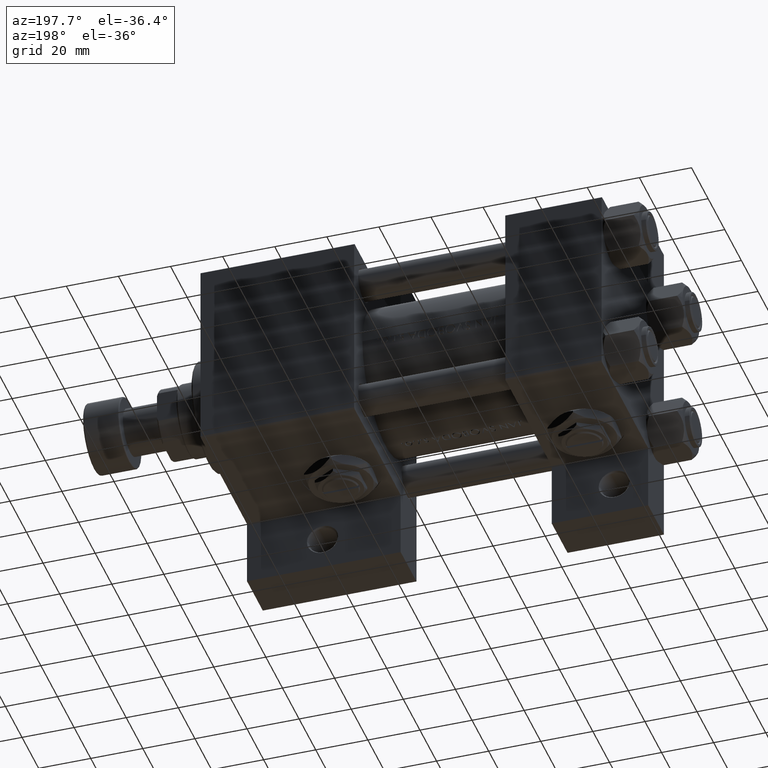
[diagram: clean part render]
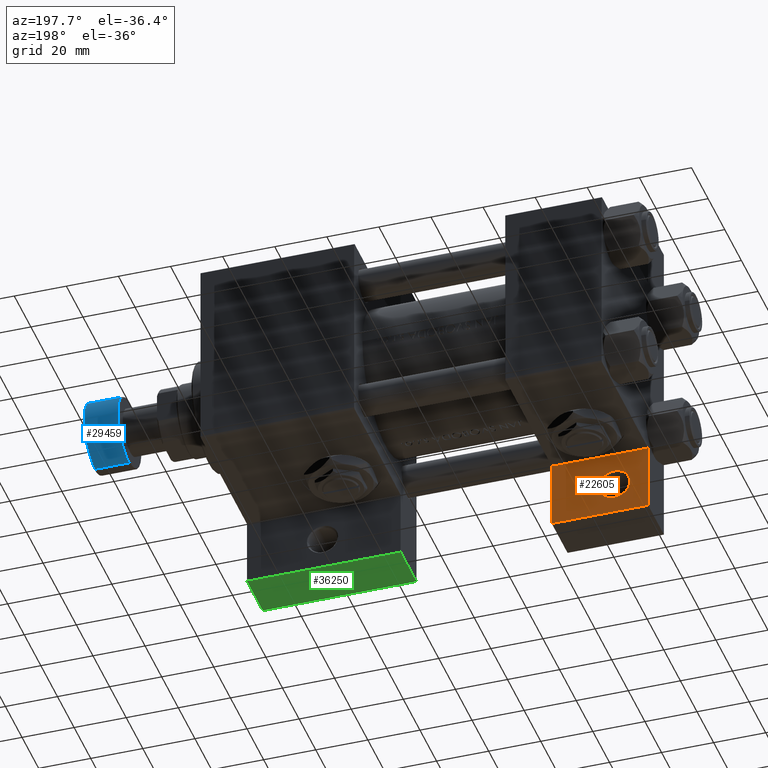
[diagram: same view with three faces highlighted in distinct colors, each labeled with its STEP entity id]
A machine part, auxiliary view with three faces highlighted in distinct colors.
Their STEP definitions:

[orange] entity #22605 — the highlighted planar face has unit normal (0, -1, 0).
#248 = LINE ( 'NONE', #7846, #16077 ) ;
#953 = VECTOR ( 'NONE', #43308, 1000.000000000000000 ) ;
#1937 = EDGE_CURVE ( 'NONE', #45838, #49404, #11157, .T. ) ;
#4748 = VERTEX_POINT ( 'NONE', #25084 ) ;
#5691 = CARTESIAN_POINT ( 'NONE',  ( 1.595073532467135441E-14, 63.50000000000000000, -18.50000000000000355 ) ) ;
#6040 = VECTOR ( 'NONE', #44583, 1000.000000000000000 ) ;
#6747 = CIRCLE ( 'NONE', #43890, 5.999500000000050015 ) ;
#7050 = CARTESIAN_POINT ( 'NONE',  ( 0.000000000000000000, 37.49999999999999289, -18.49999999999999645 ) ) ;
#7543 = EDGE_CURVE ( 'NONE', #49404, #31189, #23839, .T. ) ;
#7846 = CARTESIAN_POINT ( 'NONE',  ( 37.00000000000001421, 63.50000000000001421, -18.50000000000000355 ) ) ;
#8348 = DIRECTION ( 'NONE',  ( 2.668805347656626678E-16, 1.000000000000000000, 0.000000000000000000 ) ) ;
#8385 = CIRCLE ( 'NONE', #37431, 5.999500000000050015 ) ;
#10885 = CARTESIAN_POINT ( 'NONE',  ( 37.00000000000000711, 37.50000000000000711, -18.50000000000000355 ) ) ;
#10912 = EDGE_CURVE ( 'NONE', #19096, #22258, #6747, .T. ) ;
#11157 = LINE ( 'NONE', #19240, #31298 ) ;
#11228 = DIRECTION ( 'NONE',  ( 0.000000000000000000, 0.000000000000000000, -1.000000000000000000 ) ) ;
#11437 = EDGE_LOOP ( 'NONE', ( #35861, #33019, #14241, #47905 ) ) ;
#14241 = ORIENTED_EDGE ( 'NONE', *, *, #27640, .T. ) ;
#15703 = FACE_OUTER_BOUND ( 'NONE', #11437, .T. ) ;
#15948 = PLANE ( 'NONE',  #21526 ) ;
#16077 = VECTOR ( 'NONE', #8348, 1000.000000000000000 ) ;
#16133 = CARTESIAN_POINT ( 'NONE',  ( 18.99950000000004735, 50.99999999999996447, -18.50000000000000000 ) ) ;
#19096 = VERTEX_POINT ( 'NONE', #25381 ) ;
#19240 = CARTESIAN_POINT ( 'NONE',  ( 1.595073532467135757E-14, 63.50000000000001421, -18.50000000000000355 ) ) ;
#19499 = FACE_BOUND ( 'NONE', #44497, .T. ) ;
#21274 = CARTESIAN_POINT ( 'NONE',  ( 12.99999999999999822, 50.99999999999996447, -18.50000000000000000 ) ) ;
#21526 = AXIS2_PLACEMENT_3D ( 'NONE', #31364, #23293, #31111 ) ;
#22258 = VERTEX_POINT ( 'NONE', #16133 ) ;
#22605 = ADVANCED_FACE ( 'NONE', ( #19499, #15703 ), #15948, .F. ) ;
#23293 = DIRECTION ( 'NONE',  ( 0.000000000000000000, 0.000000000000000000, -1.000000000000000000 ) ) ;
#23839 = LINE ( 'NONE', #32174, #953 ) ;
#25084 = CARTESIAN_POINT ( 'NONE',  ( 37.00000000000001421, 63.50000000000000000, -18.50000000000000355 ) ) ;
#25381 = CARTESIAN_POINT ( 'NONE',  ( 7.000499999999947320, 50.99999999999996447, -18.50000000000000000 ) ) ;
#27640 = EDGE_CURVE ( 'NONE', #31189, #4748, #248, .T. ) ;
#28905 = ORIENTED_EDGE ( 'NONE', *, *, #10912, .T. ) ;
#29149 = LINE ( 'NONE', #33170, #6040 ) ;
#31111 = DIRECTION ( 'NONE',  ( -1.000000000000000000, 0.000000000000000000, -0.000000000000000000 ) ) ;
#31189 = VERTEX_POINT ( 'NONE', #10885 ) ;
#31298 = VECTOR ( 'NONE', #39172, 1000.000000000000000 ) ;
#31364 = CARTESIAN_POINT ( 'NONE',  ( 0.000000000000000000, 0.000000000000000000, -18.50000000000000000 ) ) ;
#31831 = EDGE_CURVE ( 'NONE', #22258, #19096, #8385, .T. ) ;
#32174 = CARTESIAN_POINT ( 'NONE',  ( 8.470280871287256020E-15, 37.50000000000002842, -18.49999999999999645 ) ) ;
#33019 = ORIENTED_EDGE ( 'NONE', *, *, #7543, .T. ) ;
#33170 = CARTESIAN_POINT ( 'NONE',  ( 1.595073532467135441E-14, 63.50000000000000000, -18.50000000000000355 ) ) ;
#34108 = EDGE_CURVE ( 'NONE', #4748, #45838, #29149, .T. ) ;
#35861 = ORIENTED_EDGE ( 'NONE', *, *, #1937, .T. ) ;
#37431 = AXIS2_PLACEMENT_3D ( 'NONE', #21274, #48345, #44545 ) ;
#37861 = ORIENTED_EDGE ( 'NONE', *, *, #31831, .T. ) ;
#39172 = DIRECTION ( 'NONE',  ( -2.877097866686192789E-16, -1.000000000000000000, 0.000000000000000000 ) ) ;
#43308 = DIRECTION ( 'NONE',  ( 1.000000000000000000, -3.750753461571474945E-16, 0.000000000000000000 ) ) ;
#43890 = AXIS2_PLACEMENT_3D ( 'NONE', #49434, #11228, #46375 ) ;
#44497 = EDGE_LOOP ( 'NONE', ( #37861, #28905 ) ) ;
#44545 = DIRECTION ( 'NONE',  ( -1.000000000000000000, 0.000000000000000000, 0.000000000000000000 ) ) ;
#44583 = DIRECTION ( 'NONE',  ( -1.000000000000000000, 0.000000000000000000, 0.000000000000000000 ) ) ;
#45838 = VERTEX_POINT ( 'NONE', #5691 ) ;
#46375 = DIRECTION ( 'NONE',  ( -1.000000000000000000, 0.000000000000000000, 0.000000000000000000 ) ) ;
#47905 = ORIENTED_EDGE ( 'NONE', *, *, #34108, .T. ) ;
#48345 = DIRECTION ( 'NONE',  ( 0.000000000000000000, 0.000000000000000000, -1.000000000000000000 ) ) ;
#49404 = VERTEX_POINT ( 'NONE', #7050 ) ;
#49434 = CARTESIAN_POINT ( 'NONE',  ( 12.99999999999999822, 50.99999999999996447, -18.50000000000000000 ) ) ;

[blue] entity #29459 — the highlighted cylindrical surface (partial cylindrical patch) has radius 13.5 mm, axis along (1, 0, 0).
#1119 = EDGE_CURVE ( 'NONE', #3066, #9830, #47476, .T. ) ;
#2505 = CARTESIAN_POINT ( 'NONE',  ( -13.50000000000000000, 1.653273178848926867E-15, -0.5000000000000004441 ) ) ;
#3066 = VERTEX_POINT ( 'NONE', #48745 ) ;
#4907 = DIRECTION ( 'NONE',  ( 1.000000000000000000, 0.000000000000000000, 0.000000000000000000 ) ) ;
#5519 = DIRECTION ( 'NONE',  ( -0.000000000000000000, -0.000000000000000000, -1.000000000000000000 ) ) ;
#5536 = ORIENTED_EDGE ( 'NONE', *, *, #48697, .F. ) ;
#8431 = ORIENTED_EDGE ( 'NONE', *, *, #38276, .T. ) ;
#9830 = VERTEX_POINT ( 'NONE', #31276 ) ;
#10528 = DIRECTION ( 'NONE',  ( 0.000000000000000000, 0.000000000000000000, 1.000000000000000000 ) ) ;
#11729 = DIRECTION ( 'NONE',  ( 0.000000000000000000, 0.000000000000000000, 1.000000000000000000 ) ) ;
#13407 = DIRECTION ( 'NONE',  ( 0.000000000000000000, 0.000000000000000000, 1.000000000000000000 ) ) ;
#18590 = CARTESIAN_POINT ( 'NONE',  ( 0.000000000000000000, 0.000000000000000000, -13.50000000000000000 ) ) ;
#21996 = LINE ( 'NONE', #29095, #38500 ) ;
#25450 = LINE ( 'NONE', #45190, #45212 ) ;
#25868 = ORIENTED_EDGE ( 'NONE', *, *, #1119, .T. ) ;
#26000 = EDGE_LOOP ( 'NONE', ( #25868, #36858, #8431, #5536 ) ) ;
#26349 = AXIS2_PLACEMENT_3D ( 'NONE', #27255, #5519, #41133 ) ;
#27255 = CARTESIAN_POINT ( 'NONE',  ( 0.000000000000000000, 0.000000000000000000, -0.5000000000000004441 ) ) ;
#29095 = CARTESIAN_POINT ( 'NONE',  ( -13.50000000000000000, 1.653273178848926867E-15, -14.00000000000000000 ) ) ;
#29459 = ADVANCED_FACE ( 'NONE', ( #39774 ), #47138, .T. ) ;
#31276 = CARTESIAN_POINT ( 'NONE',  ( -13.50000000000000000, 1.653273178848926867E-15, -13.50000000000000000 ) ) ;
#33992 = DIRECTION ( 'NONE',  ( 1.000000000000000000, 0.000000000000000000, 0.000000000000000000 ) ) ;
#35734 = DIRECTION ( 'NONE',  ( 0.000000000000000000, 0.000000000000000000, 1.000000000000000000 ) ) ;
#36858 = ORIENTED_EDGE ( 'NONE', *, *, #38960, .T. ) ;
#38276 = EDGE_CURVE ( 'NONE', #49158, #44907, #48187, .T. ) ;
#38500 = VECTOR ( 'NONE', #13407, 1000.000000000000000 ) ;
#38960 = EDGE_CURVE ( 'NONE', #9830, #49158, #21996, .T. ) ;
#39774 = FACE_OUTER_BOUND ( 'NONE', #26000, .T. ) ;
#40184 = AXIS2_PLACEMENT_3D ( 'NONE', #18590, #11729, #33992 ) ;
#41133 = DIRECTION ( 'NONE',  ( 1.000000000000000000, 0.000000000000000000, 0.000000000000000000 ) ) ;
#43617 = CARTESIAN_POINT ( 'NONE',  ( 13.50000000000000000, 0.000000000000000000, -0.5000000000000004441 ) ) ;
#44086 = CARTESIAN_POINT ( 'NONE',  ( 0.000000000000000000, 0.000000000000000000, -14.00000000000000000 ) ) ;
#44907 = VERTEX_POINT ( 'NONE', #43617 ) ;
#45190 = CARTESIAN_POINT ( 'NONE',  ( 13.50000000000000000, 0.000000000000000000, -14.00000000000000000 ) ) ;
#45212 = VECTOR ( 'NONE', #10528, 1000.000000000000000 ) ;
#47138 = CYLINDRICAL_SURFACE ( 'NONE', #50084, 13.50000000000000000 ) ;
#47476 = CIRCLE ( 'NONE', #40184, 13.50000000000000000 ) ;
#48187 = CIRCLE ( 'NONE', #26349, 13.50000000000000000 ) ;
#48697 = EDGE_CURVE ( 'NONE', #3066, #44907, #25450, .T. ) ;
#48745 = CARTESIAN_POINT ( 'NONE',  ( 13.50000000000000000, 0.000000000000000000, -13.50000000000000000 ) ) ;
#49158 = VERTEX_POINT ( 'NONE', #2505 ) ;
#50084 = AXIS2_PLACEMENT_3D ( 'NONE', #44086, #35734, #4907 ) ;

[green] entity #36250 — the highlighted planar face has unit normal (0, 0, -1).
#1809 = VERTEX_POINT ( 'NONE', #47033 ) ;
#1853 = EDGE_CURVE ( 'NONE', #31200, #23795, #34036, .T. ) ;
#2674 = ORIENTED_EDGE ( 'NONE', *, *, #12091, .T. ) ;
#3712 = DIRECTION ( 'NONE',  ( 0.000000000000000000, 0.000000000000000000, -1.000000000000000000 ) ) ;
#3840 = DIRECTION ( 'NONE',  ( 1.000000000000000000, 0.000000000000000000, 0.000000000000000000 ) ) ;
#5483 = VECTOR ( 'NONE', #3712, 1000.000000000000000 ) ;
#6830 = CARTESIAN_POINT ( 'NONE',  ( 95.00000000000000000, 63.50000000000000000, -18.50000000000000000 ) ) ;
#6944 = VERTEX_POINT ( 'NONE', #42110 ) ;
#7755 = ORIENTED_EDGE ( 'NONE', *, *, #8381, .F. ) ;
#8381 = EDGE_CURVE ( 'NONE', #23795, #1809, #24600, .T. ) ;
#11120 = DIRECTION ( 'NONE',  ( 0.000000000000000000, -0.000000000000000000, 1.000000000000000000 ) ) ;
#11663 = CARTESIAN_POINT ( 'NONE',  ( 95.00000000000000000, 63.50000000000000000, -18.50000000000000000 ) ) ;
#11727 = AXIS2_PLACEMENT_3D ( 'NONE', #6830, #30338, #11120 ) ;
#12091 = EDGE_CURVE ( 'NONE', #31200, #6944, #17272, .T. ) ;
#15649 = VECTOR ( 'NONE', #3840, 1000.000000000000000 ) ;
#17023 = CARTESIAN_POINT ( 'NONE',  ( 95.00000000000000000, 63.50000000000000000, -37.50000000000000000 ) ) ;
#17272 = LINE ( 'NONE', #11663, #15649 ) ;
#22754 = CARTESIAN_POINT ( 'NONE',  ( 95.00000000000000000, 63.50000000000000000, -37.50000000000000000 ) ) ;
#23795 = VERTEX_POINT ( 'NONE', #22754 ) ;
#24600 = LINE ( 'NONE', #17023, #48667 ) ;
#25927 = ORIENTED_EDGE ( 'NONE', *, *, #48062, .T. ) ;
#28546 = ORIENTED_EDGE ( 'NONE', *, *, #1853, .F. ) ;
#28638 = DIRECTION ( 'NONE',  ( 1.000000000000000000, 0.000000000000000000, 0.000000000000000000 ) ) ;
#30338 = DIRECTION ( 'NONE',  ( -0.000000000000000000, 1.000000000000000000, 0.000000000000000000 ) ) ;
#31200 = VERTEX_POINT ( 'NONE', #33141 ) ;
#33141 = CARTESIAN_POINT ( 'NONE',  ( 95.00000000000000000, 63.50000000000000000, -18.50000000000000000 ) ) ;
#33864 = PLANE ( 'NONE',  #11727 ) ;
#34036 = LINE ( 'NONE', #38318, #5483 ) ;
#35894 = CARTESIAN_POINT ( 'NONE',  ( 154.0000000000000000, 63.50000000000000000, -18.50000000000000000 ) ) ;
#36250 = ADVANCED_FACE ( 'NONE', ( #45775 ), #33864, .T. ) ;
#38318 = CARTESIAN_POINT ( 'NONE',  ( 95.00000000000000000, 63.50000000000000000, -18.50000000000000000 ) ) ;
#38400 = EDGE_LOOP ( 'NONE', ( #7755, #28546, #2674, #25927 ) ) ;
#42110 = CARTESIAN_POINT ( 'NONE',  ( 154.0000000000000000, 63.50000000000000000, -18.50000000000000000 ) ) ;
#43994 = DIRECTION ( 'NONE',  ( 0.000000000000000000, 0.000000000000000000, -1.000000000000000000 ) ) ;
#45775 = FACE_OUTER_BOUND ( 'NONE', #38400, .T. ) ;
#47033 = CARTESIAN_POINT ( 'NONE',  ( 154.0000000000000000, 63.50000000000000000, -37.50000000000000000 ) ) ;
#47302 = LINE ( 'NONE', #35894, #48399 ) ;
#48062 = EDGE_CURVE ( 'NONE', #6944, #1809, #47302, .T. ) ;
#48399 = VECTOR ( 'NONE', #43994, 1000.000000000000000 ) ;
#48667 = VECTOR ( 'NONE', #28638, 1000.000000000000000 ) ;